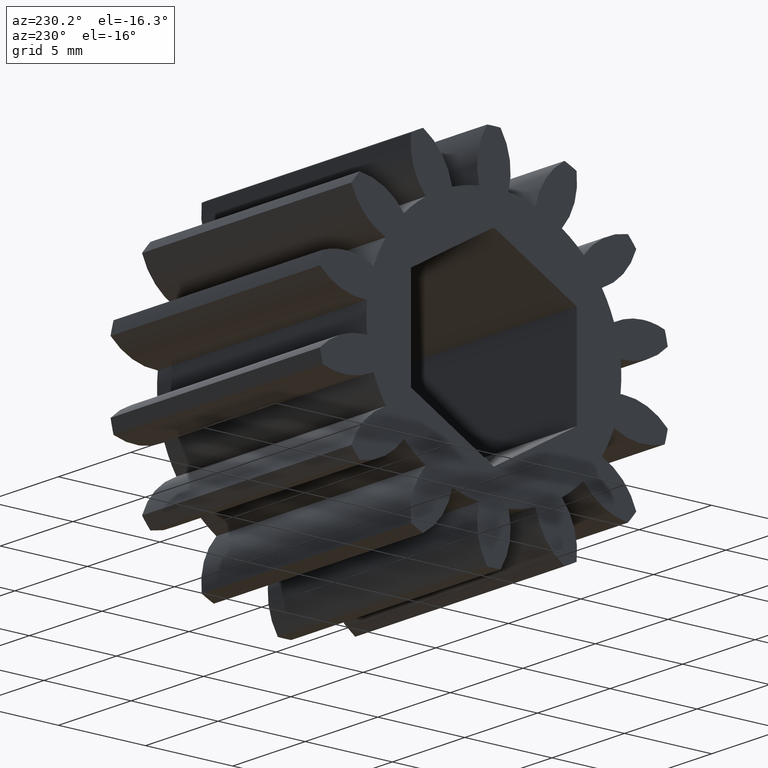
[diagram: clean part render]
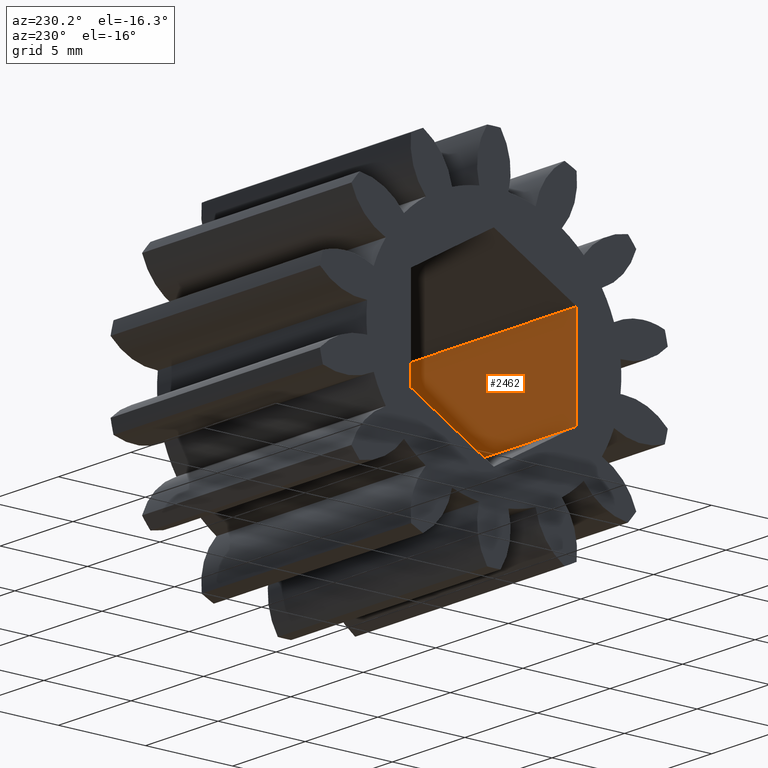
[diagram: same view with one face highlighted and labeled with its STEP entity id]
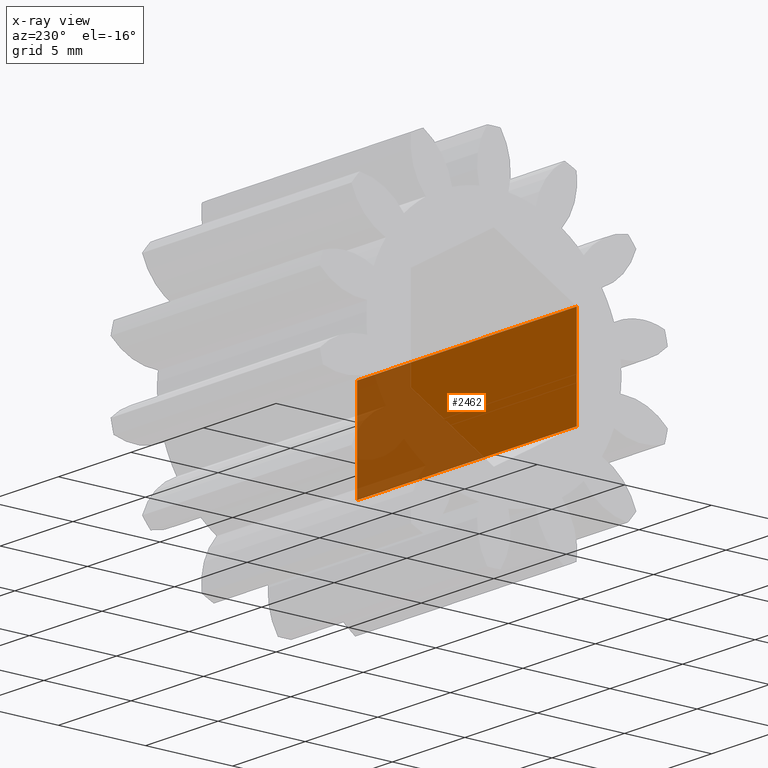
[diagram: x-ray of the same camera — body ghosted, the highlighted face saturated]
A machine part, auxiliary view. The second image highlights one B-rep face of the part: STEP entity #2462.
The next image is the same camera in x-ray: the body ghosted, the highlighted face saturated — about 38% of this face is hidden behind the body in this view.
In plain terms, the highlighted planar face has unit normal (0, -1, -0).
Its self-contained STEP definition (entity closure, byte-faithful):
#51 = CARTESIAN_POINT ( 'NONE',  ( 0.0000000000000000000, -0.1875000000000000800, 0.1082531754730548500 ) ) ;
#160 = ORIENTED_EDGE ( 'NONE', *, *, #827, .T. ) ;
#347 = VECTOR ( 'NONE', #1291, 39.37007874015748100 ) ;
#379 = ORIENTED_EDGE ( 'NONE', *, *, #2055, .F. ) ;
#421 = VERTEX_POINT ( 'NONE', #461 ) ;
#461 = CARTESIAN_POINT ( 'NONE',  ( 0.0000000000000000000, -0.1875000000000000800, -0.1082531754730548500 ) ) ;
#559 = VECTOR ( 'NONE', #2458, 39.37007874015748100 ) ;
#724 = CARTESIAN_POINT ( 'NONE',  ( 0.0000000000000000000, -0.1875000000000000800, -0.1082531754730548500 ) ) ;
#745 = VERTEX_POINT ( 'NONE', #1177 ) ;
#784 = CARTESIAN_POINT ( 'NONE',  ( 0.5959999999999999700, -0.1875000000000000800, 0.1082531754730548500 ) ) ;
#811 = EDGE_CURVE ( 'NONE', #421, #745, #1136, .T. ) ;
#827 = EDGE_CURVE ( 'NONE', #1637, #1121, #1484, .T. ) ;
#935 = FACE_OUTER_BOUND ( 'NONE', #1413, .T. ) ;
#971 = EDGE_CURVE ( 'NONE', #1121, #745, #1808, .T. ) ;
#1121 = VERTEX_POINT ( 'NONE', #784 ) ;
#1136 = LINE ( 'NONE', #724, #559 ) ;
#1177 = CARTESIAN_POINT ( 'NONE',  ( 0.5959999999999999700, -0.1875000000000000800, -0.1082531754730548500 ) ) ;
#1261 = CARTESIAN_POINT ( 'NONE',  ( 0.5959999999999999700, -0.1875000000000000800, 0.1082531754730548500 ) ) ;
#1291 = DIRECTION ( 'NONE',  ( 0.0000000000000000000, 0.0000000000000000000, -1.000000000000000000 ) ) ;
#1370 = VECTOR ( 'NONE', #1820, 39.37007874015748100 ) ;
#1410 = ORIENTED_EDGE ( 'NONE', *, *, #971, .T. ) ;
#1413 = EDGE_LOOP ( 'NONE', ( #1410, #2318, #379, #160 ) ) ;
#1484 = LINE ( 'NONE', #1521, #2504 ) ;
#1521 = CARTESIAN_POINT ( 'NONE',  ( 0.0000000000000000000, -0.1875000000000000800, 0.1082531754730548500 ) ) ;
#1526 = CARTESIAN_POINT ( 'NONE',  ( 0.0000000000000000000, -0.1875000000000000800, 0.1082531754730548500 ) ) ;
#1637 = VERTEX_POINT ( 'NONE', #51 ) ;
#1808 = LINE ( 'NONE', #1261, #347 ) ;
#1820 = DIRECTION ( 'NONE',  ( 0.0000000000000000000, 0.0000000000000000000, -1.000000000000000000 ) ) ;
#1842 = DIRECTION ( 'NONE',  ( 1.000000000000000000, -0.0000000000000000000, -0.0000000000000000000 ) ) ;
#1956 = PLANE ( 'NONE',  #2232 ) ;
#2055 = EDGE_CURVE ( 'NONE', #1637, #421, #2333, .T. ) ;
#2232 = AXIS2_PLACEMENT_3D ( 'NONE', #2438, #2515, #2540 ) ;
#2318 = ORIENTED_EDGE ( 'NONE', *, *, #811, .F. ) ;
#2333 = LINE ( 'NONE', #1526, #1370 ) ;
#2438 = CARTESIAN_POINT ( 'NONE',  ( 0.0000000000000000000, -0.1875000000000000800, 0.1082531754730548500 ) ) ;
#2458 = DIRECTION ( 'NONE',  ( 1.000000000000000000, -0.0000000000000000000, -0.0000000000000000000 ) ) ;
#2462 = ADVANCED_FACE ( 'NONE', ( #935 ), #1956, .F. ) ;
#2504 = VECTOR ( 'NONE', #1842, 39.37007874015748100 ) ;
#2515 = DIRECTION ( 'NONE',  ( 0.0000000000000000000, -1.000000000000000000, -0.0000000000000000000 ) ) ;
#2540 = DIRECTION ( 'NONE',  ( 0.0000000000000000000, 0.0000000000000000000, -1.000000000000000000 ) ) ;